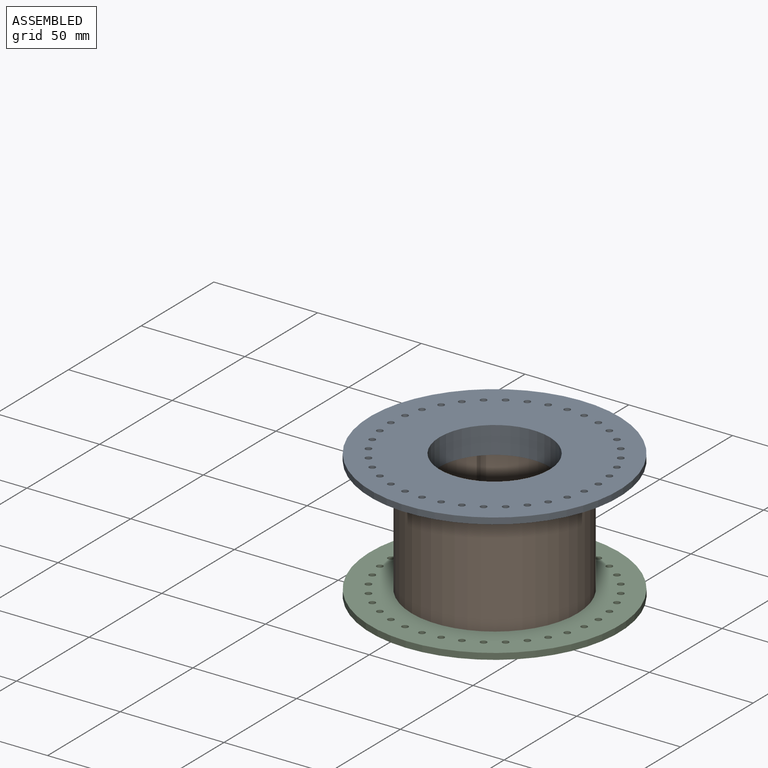
[diagram: assembled view]
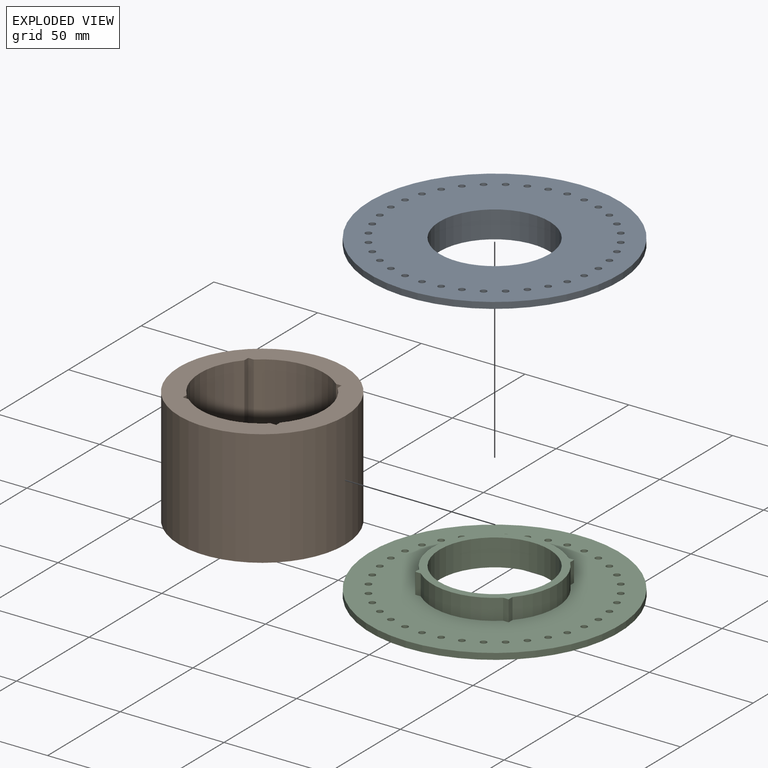
[diagram: exploded view]
GUIDED TOUR — MATED ASSEMBLY (Onshape document 8cd0e71a39302e8dd9101bc3, AutoMate assembly 8cd0e71a39302e8dd9101bc3_b6bc6614b7f099f93830e210_ee81863b3f11e340a0fe2805_default)

This assembly has 3 components, labeled P0..P2 below (a component is one placed occurrence of a part; the same part can appear more than once), held together by 3 mates. A mate is a constraint between two components; its type names the relative motion it leaves free:
  PARALLEL — keeps the two listed directions parallel.
Axis/direction vectors are unit vectors and 'through' points are millimeter coordinates, both in the assembly's world frame.

MATES
  1. PARALLEL "Parallel 1": P1 <-> P0, direction (0.000, 0.000, 1.000) through (-87.76, -81.19, 42.02) mm
  2. PARALLEL "Parallel 2": P1 <-> P2, direction (1.000, 0.000, 0.000) through (-110.26, -102.36, 14.02) mm
  3. PARALLEL "Parallel 3": P2 <-> P1, direction (0.000, 0.000, 1.000) through (-87.76, -81.19, -13.98) mm

ASSEMBLY ORDER
  1. P2 — the base component [order verified]
  2. P1 [order verified]
  3. P0 [order verified]
Order-tag legend:
  [order verified] — this step's position reverses a verified removal order: the component was checked to insert without passing through the ones already placed.

Of the 3 components, 2 carry the full construction recipe — the FeatureScript program that regenerates the part's solid from scratch; the rest are supplied as boundary geometry only.
Each toured component is shown spotlighted twice — in the assembled view, then in the exploded view, where a leader line traces a displaced component back to its assembled socket (saturated green if recipe-attached, orange if geometry-only; every other component desaturated gray) — followed by its recipe or geometry summary and the mates that hold it.
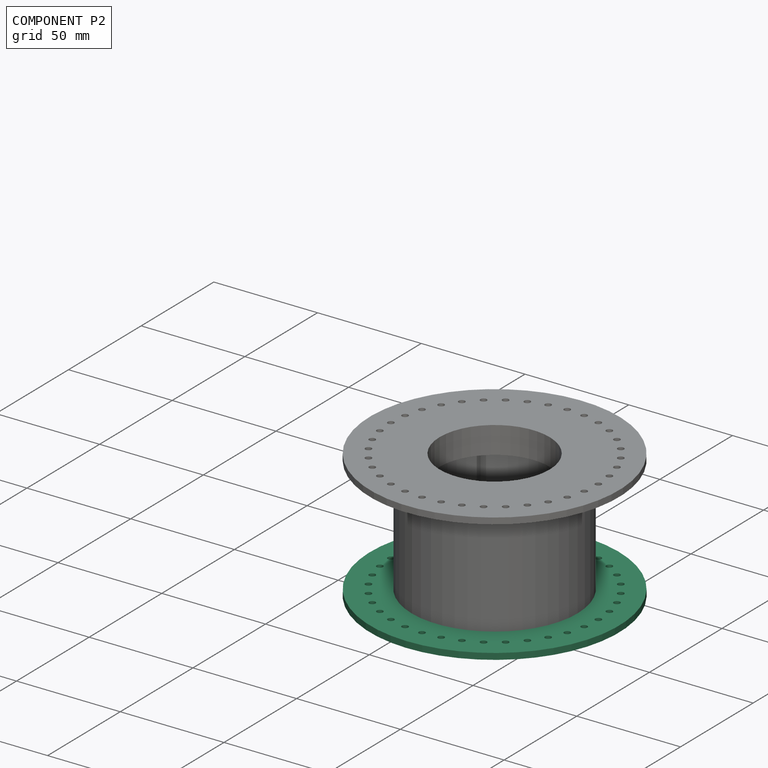
[diagram: component P2 — assembled]
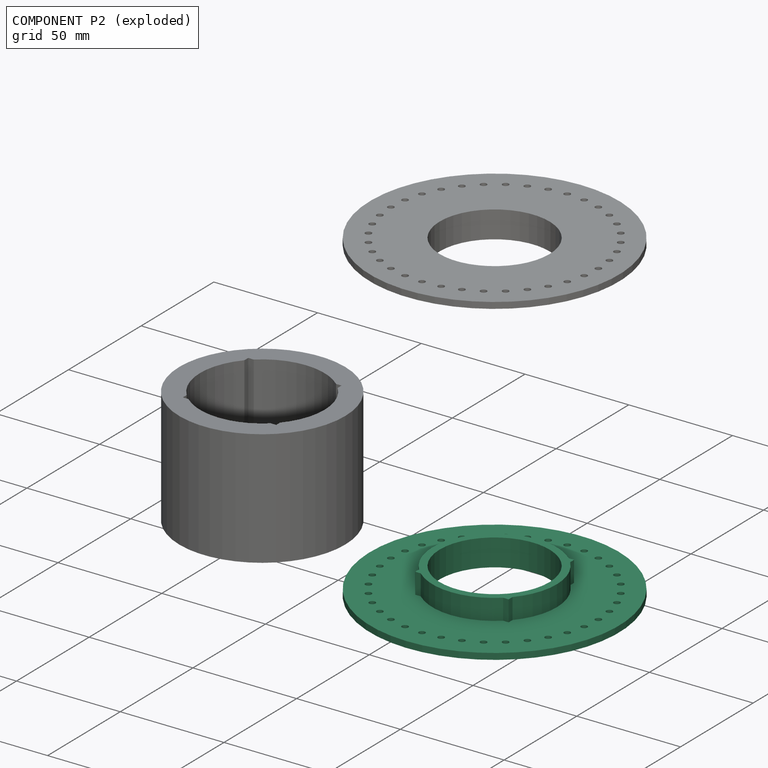
[diagram: component P2 — exploded]
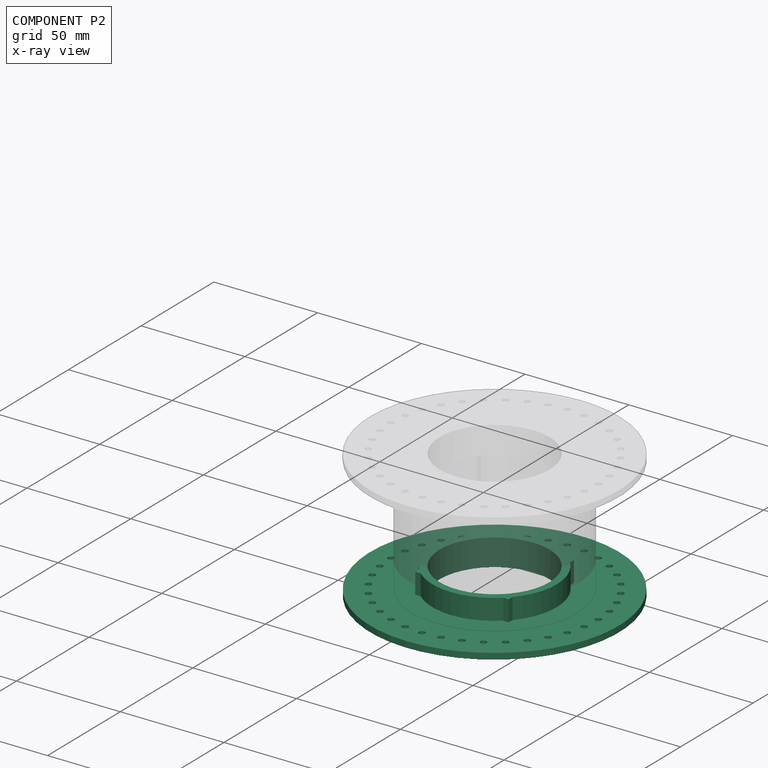
[diagram: component P2 — x-ray view]
COMPONENT P2 — same part as P0 (CADFS 00325223); its construction recipe is shown at P0.
Held by: PARALLEL mate "Parallel 2" to P1; PARALLEL mate "Parallel 3" to P1.
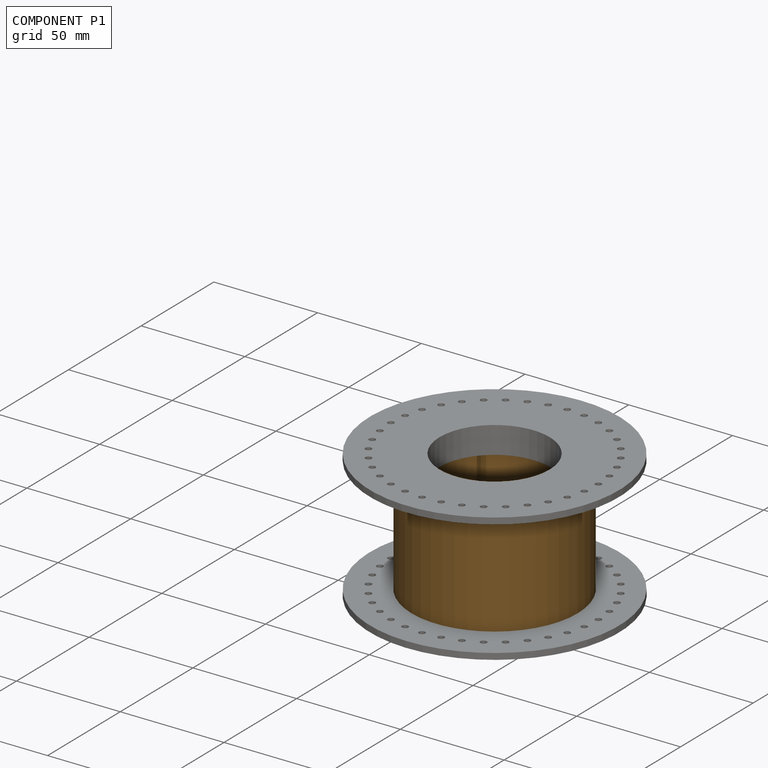
[diagram: component P1 — assembled]
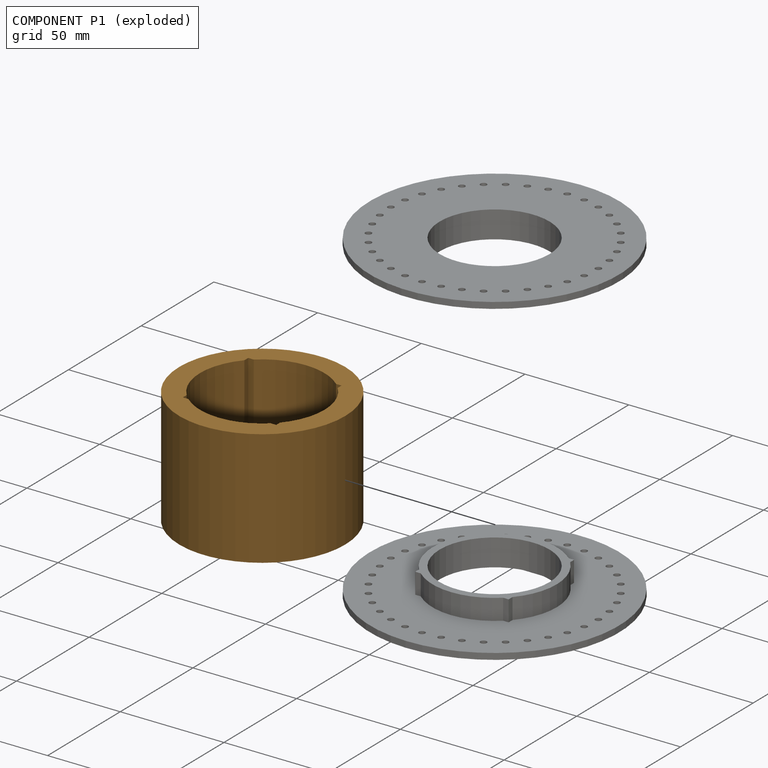
[diagram: component P1 — exploded]
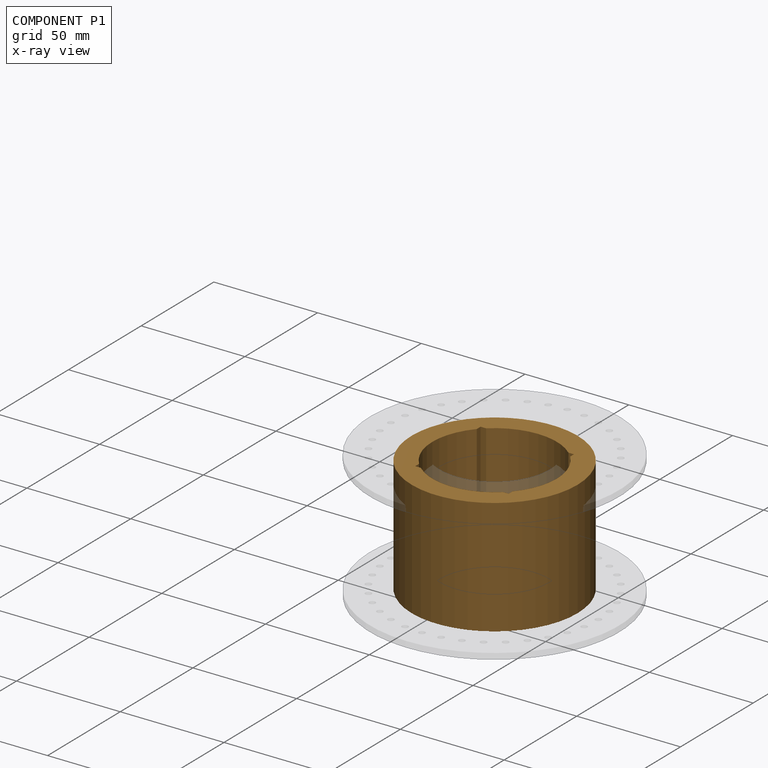
[diagram: component P1 — x-ray view]
COMPONENT P1 — geometry summary (no construction recipe available for this part):
  bounding box: 80.0 x 80.0 x 56.0 mm
  B-rep topology: 1 solid, 15 faces, 78 edges
  volume: 122393 mm^3 (34% of its bounding box)
  symmetry: 2-fold rotationally symmetric about the x axis; 2-fold rotationally symmetric about the y axis; 4-fold rotationally symmetric about the z axis; mirror-symmetric across its x mid-plane, y mid-plane, z mid-plane
Held by: PARALLEL mate "Parallel 1" to P0; PARALLEL mate "Parallel 2" to P2; PARALLEL mate "Parallel 3" to P2.
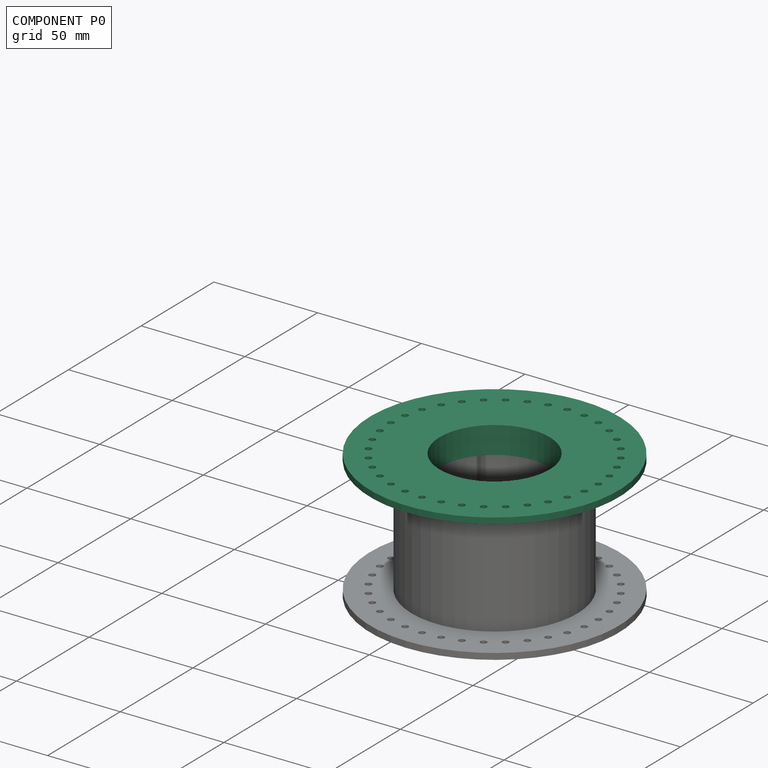
[diagram: component P0 — assembled]
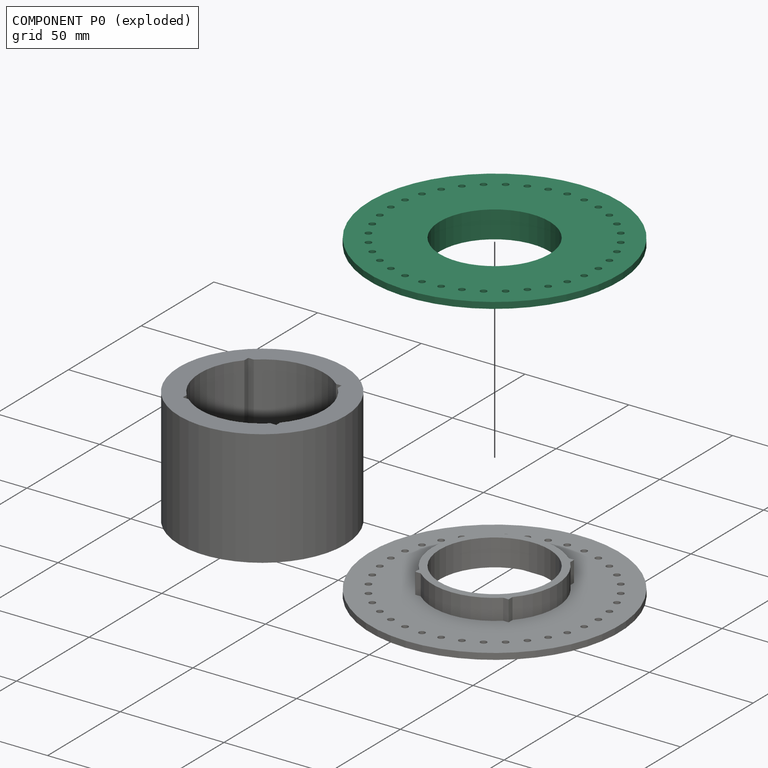
[diagram: component P0 — exploded]
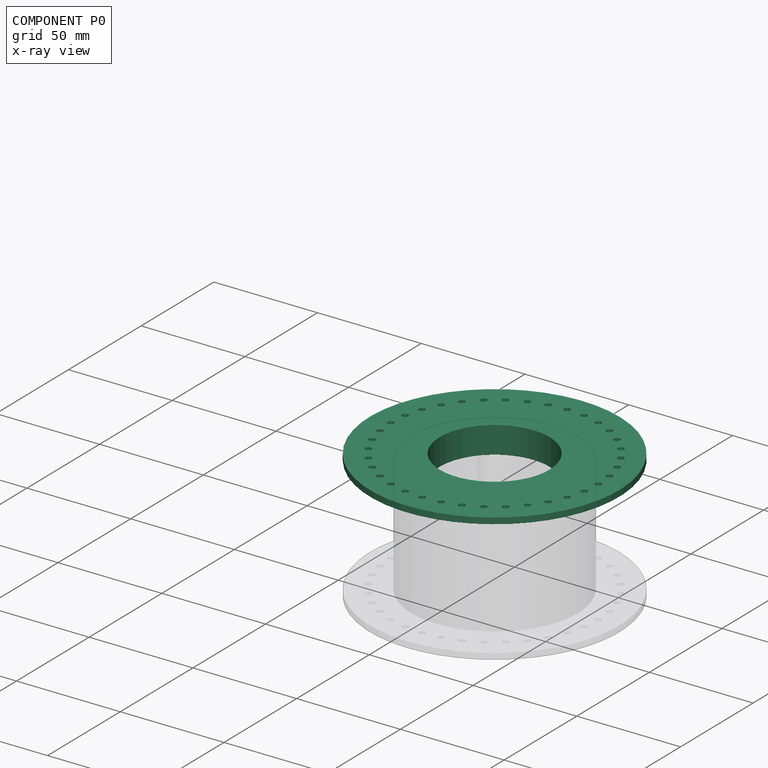
[diagram: component P0 — x-ray view]
COMPONENT P0 — recipe-attached (CADFS 00325223, mesh-verified: the recipe's output STEP matches this component's geometry to below the mesh-comparison resolution (tessellation chordal tolerance ~0.255 mm)).
Held by: PARALLEL mate "Parallel 1" to P1.
Construction recipe (FeatureScript — the CAD program that rebuilds this solid; sketch coordinates are in the units given by the * unit suffixes, e.g. mm):

FeatureScript 1511;
import(path : "onshape/std/geometry.fs", version : "1511.0");
import(path : "onshape/std/common.fs", version : "1511.0");
const mm = millimeter;
const VERTEX = EntityType.VERTEX;
const EDGE = EntityType.EDGE;
const FACE = EntityType.FACE;
const BODY = EntityType.BODY;
function v(x, y){return vector(x, y);}
function OD(order){return orderDisambiguation(order);}
function OSD(set){return originalSetDisambiguation(set);}
function TD(topology){return topologyDisambiguation(topology);}
function TDD(query){return trueDependencyDisambiguation(query);}
function sQuery(a, b, c) {return sketchEntityQuery(a, b, c);}

annotation { "Feature Type Name" : "Feature", "Feature Type Description" : "" }
export const myFeature = defineFeature(function(context is Context, id is Id, definition is map)
    precondition{}
    {
        {
            var Q0;
            Q0=qCreatedBy(makeId("Top.planeOp"),FACE);
            var sketch = newSketch(context, id + "F0", { "sketchPlane" : qUnion([Q0])});
            skCircle(sketch, "E0", {"center": v(0, 0) * mm, "radius": 60 * mm});
            skCircle(sketch, "E1", {"center": v(0, -50) * mm, "radius": 1.5 * mm});
            skCircle(sketch, "E2.1.0", {"center": v(8.68, -49.24) * mm, "radius": 1.5 * mm});
            skCircle(sketch, "E2.2.0", {"center": v(17.1, -46.98) * mm, "radius": 1.5 * mm});
            skCircle(sketch, "E2.3.0", {"center": v(25, -43.3) * mm, "radius": 1.5 * mm});
            skCircle(sketch, "E2.4.0", {"center": v(32.14, -38.3) * mm, "radius": 1.5 * mm});
            skCircle(sketch, "E2.5.0", {"center": v(38.3, -32.14) * mm, "radius": 1.5 * mm});
            skCircle(sketch, "E2.6.0", {"center": v(43.3, -25) * mm, "radius": 1.5 * mm});
            skCircle(sketch, "E2.7.0", {"center": v(46.98, -17.1) * mm, "radius": 1.5 * mm});
            skCircle(sketch, "E2.8.0", {"center": v(49.24, -8.68) * mm, "radius": 1.5 * mm});
            skCircle(sketch, "E2.9.0", {"center": v(50, 0) * mm, "radius": 1.5 * mm});
            skCircle(sketch, "E2.10.0", {"center": v(49.24, 8.68) * mm, "radius": 1.5 * mm});
            skCircle(sketch, "E2.11.0", {"center": v(46.98, 17.1) * mm, "radius": 1.5 * mm});
            skCircle(sketch, "E2.12.0", {"center": v(43.3, 25) * mm, "radius": 1.5 * mm});
            skCircle(sketch, "E2.13.0", {"center": v(38.3, 32.14) * mm, "radius": 1.5 * mm});
            skCircle(sketch, "E2.14.0", {"center": v(32.14, 38.3) * mm, "radius": 1.5 * mm});
            skCircle(sketch, "E2.15.0", {"center": v(25, 43.3) * mm, "radius": 1.5 * mm});
            skCircle(sketch, "E2.16.0", {"center": v(17.1, 46.98) * mm, "radius": 1.5 * mm});
            skCircle(sketch, "E2.17.0", {"center": v(8.68, 49.24) * mm, "radius": 1.5 * mm});
            skCircle(sketch, "E2.18.0", {"center": v(0, 50) * mm, "radius": 1.5 * mm});
            skCircle(sketch, "E2.19.0", {"center": v(-8.68, 49.24) * mm, "radius": 1.5 * mm});
            skCircle(sketch, "E2.20.0", {"center": v(-17.1, 46.98) * mm, "radius": 1.5 * mm});
            skCircle(sketch, "E2.21.0", {"center": v(-25, 43.3) * mm, "radius": 1.5 * mm});
            skCircle(sketch, "E2.22.0", {"center": v(-32.14, 38.3) * mm, "radius": 1.5 * mm});
            skCircle(sketch, "E2.23.0", {"center": v(-38.3, 32.14) * mm, "radius": 1.5 * mm});
            skCircle(sketch, "E2.24.0", {"center": v(-43.3, 25) * mm, "radius": 1.5 * mm});
            skCircle(sketch, "E2.25.0", {"center": v(-46.98, 17.1) * mm, "radius": 1.5 * mm});
            skCircle(sketch, "E2.26.0", {"center": v(-49.24, 8.68) * mm, "radius": 1.5 * mm});
            skCircle(sketch, "E2.27.0", {"center": v(-50, 0) * mm, "radius": 1.5 * mm});
            skCircle(sketch, "E2.28.0", {"center": v(-49.24, -8.68) * mm, "radius": 1.5 * mm});
            skCircle(sketch, "E2.29.0", {"center": v(-46.98, -17.1) * mm, "radius": 1.5 * mm});
            skCircle(sketch, "E2.30.0", {"center": v(-43.3, -25) * mm, "radius": 1.5 * mm});
            skCircle(sketch, "E2.31.0", {"center": v(-38.3, -32.14) * mm, "radius": 1.5 * mm});
            skCircle(sketch, "E2.32.0", {"center": v(-32.14, -38.3) * mm, "radius": 1.5 * mm});
            skCircle(sketch, "E2.33.0", {"center": v(-25, -43.3) * mm, "radius": 1.5 * mm});
            skCircle(sketch, "E2.34.0", {"center": v(-17.1, -46.98) * mm, "radius": 1.5 * mm});
            skCircle(sketch, "E2.35.0", {"center": v(-8.68, -49.24) * mm, "radius": 1.5 * mm});
            skLineSegment(sketch, "E2.anchor1", {"start": v(0, 0) * mm, "end": v(0, -50) * mm, "construction": true});
            skLineSegment(sketch, "E2.anchor2", {"start": v(0, 0) * mm, "end": v(-8.68, -49.24) * mm, "construction": true});
            skSolve(sketch);
        }
        {
            var Q0;
            Q0=makeQuery(id+"F0.imprint","IMPRINT",FACE,{"disambiguationData":[TD([[makeQuery(id+"F0.imprint","IMPRINT",EDGE,{"derivedFrom":sQuery(id+"F0.wireOp",EDGE,"E1")}),-1.0]])]});
            extrude(context, id + "F1", {"entities" : qUnion([Q0]), "depth" : 3 * mm});
        }
        {
            var Q0;
            Q0=makeQuery(id+"F1.opExtrude","CAP_FACE",FACE,{"disambiguationData":[OSD([sQuery(id+"F0.wireOp",EDGE,"E1"),sQuery(id+"F0.wireOp",EDGE,"E2.1.0"),sQuery(id+"F0.wireOp",EDGE,"E2.2.0"),sQuery(id+"F0.wireOp",EDGE,"E2.3.0"),sQuery(id+"F0.wireOp",EDGE,"E2.4.0"),sQuery(id+"F0.wireOp",EDGE,"E2.5.0"),sQuery(id+"F0.wireOp",EDGE,"E2.6.0"),sQuery(id+"F0.wireOp",EDGE,"E2.7.0"),sQuery(id+"F0.wireOp",EDGE,"E2.8.0"),sQuery(id+"F0.wireOp",EDGE,"E2.9.0"),sQuery(id+"F0.wireOp",EDGE,"E2.10.0"),sQuery(id+"F0.wireOp",EDGE,"E2.11.0"),sQuery(id+"F0.wireOp",EDGE,"E2.12.0"),sQuery(id+"F0.wireOp",EDGE,"E2.13.0"),sQuery(id+"F0.wireOp",EDGE,"E2.14.0"),sQuery(id+"F0.wireOp",EDGE,"E2.15.0"),sQuery(id+"F0.wireOp",EDGE,"E2.16.0"),sQuery(id+"F0.wireOp",EDGE,"E2.17.0"),sQuery(id+"F0.wireOp",EDGE,"E2.18.0"),sQuery(id+"F0.wireOp",EDGE,"E2.19.0"),sQuery(id+"F0.wireOp",EDGE,"E2.20.0"),sQuery(id+"F0.wireOp",EDGE,"E2.21.0"),sQuery(id+"F0.wireOp",EDGE,"E2.22.0"),sQuery(id+"F0.wireOp",EDGE,"E2.23.0"),sQuery(id+"F0.wireOp",EDGE,"E2.24.0"),sQuery(id+"F0.wireOp",EDGE,"E2.25.0"),sQuery(id+"F0.wireOp",EDGE,"E2.26.0"),sQuery(id+"F0.wireOp",EDGE,"E2.27.0"),sQuery(id+"F0.wireOp",EDGE,"E2.28.0"),sQuery(id+"F0.wireOp",EDGE,"E2.29.0"),sQuery(id+"F0.wireOp",EDGE,"E2.30.0"),sQuery(id+"F0.wireOp",EDGE,"E2.31.0"),sQuery(id+"F0.wireOp",EDGE,"E2.32.0"),sQuery(id+"F0.wireOp",EDGE,"E2.33.0"),sQuery(id+"F0.wireOp",EDGE,"E2.34.0"),sQuery(id+"F0.wireOp",EDGE,"E2.35.0"),sQuery(id+"F0.wireOp",EDGE,"E0")])],"isStart":false});
            var sketch = newSketch(context, id + "F2", { "sketchPlane" : qUnion([Q0])});
            skCircle(sketch, "E3", {"center": v(0, 0) * mm, "radius": 26.5 * mm});
            skSolve(sketch);
        }
        {
            var Q0;
            Q0=makeQuery(id+"F2.imprint","IMPRINT",FACE,{"disambiguationData":[TD([[makeQuery(id+"F2.imprint","IMPRINT",EDGE,{"derivedFrom":sQuery(id+"F2.wireOp",EDGE,"E3")}),1.0]])]});
            extrude(context, id + "F3", {"entities" : qUnion([Q0]), "operationType" : NewBodyOperationType.REMOVE, "oppositeDirection" : true, "depth" : 25 * mm});
        }
        {
            var Q0;
            Q0=makeQuery(id+"F1.opExtrude","CAP_FACE",FACE,{"disambiguationData":[OSD([sQuery(id+"F0.wireOp",EDGE,"E1"),sQuery(id+"F0.wireOp",EDGE,"E2.1.0"),sQuery(id+"F0.wireOp",EDGE,"E2.2.0"),sQuery(id+"F0.wireOp",EDGE,"E2.3.0"),sQuery(id+"F0.wireOp",EDGE,"E2.4.0"),sQuery(id+"F0.wireOp",EDGE,"E2.5.0"),sQuery(id+"F0.wireOp",EDGE,"E2.6.0"),sQuery(id+"F0.wireOp",EDGE,"E2.7.0"),sQuery(id+"F0.wireOp",EDGE,"E2.8.0"),sQuery(id+"F0.wireOp",EDGE,"E2.9.0"),sQuery(id+"F0.wireOp",EDGE,"E2.10.0"),sQuery(id+"F0.wireOp",EDGE,"E2.11.0"),sQuery(id+"F0.wireOp",EDGE,"E2.12.0"),sQuery(id+"F0.wireOp",EDGE,"E2.13.0"),sQuery(id+"F0.wireOp",EDGE,"E2.14.0"),sQuery(id+"F0.wireOp",EDGE,"E2.15.0"),sQuery(id+"F0.wireOp",EDGE,"E2.16.0"),sQuery(id+"F0.wireOp",EDGE,"E2.17.0"),sQuery(id+"F0.wireOp",EDGE,"E2.18.0"),sQuery(id+"F0.wireOp",EDGE,"E2.19.0"),sQuery(id+"F0.wireOp",EDGE,"E2.20.0"),sQuery(id+"F0.wireOp",EDGE,"E2.21.0"),sQuery(id+"F0.wireOp",EDGE,"E2.22.0"),sQuery(id+"F0.wireOp",EDGE,"E2.23.0"),sQuery(id+"F0.wireOp",EDGE,"E2.24.0"),sQuery(id+"F0.wireOp",EDGE,"E2.25.0"),sQuery(id+"F0.wireOp",EDGE,"E2.26.0"),sQuery(id+"F0.wireOp",EDGE,"E2.27.0"),sQuery(id+"F0.wireOp",EDGE,"E2.28.0"),sQuery(id+"F0.wireOp",EDGE,"E2.29.0"),sQuery(id+"F0.wireOp",EDGE,"E2.30.0"),sQuery(id+"F0.wireOp",EDGE,"E2.31.0"),sQuery(id+"F0.wireOp",EDGE,"E2.32.0"),sQuery(id+"F0.wireOp",EDGE,"E2.33.0"),sQuery(id+"F0.wireOp",EDGE,"E2.34.0"),sQuery(id+"F0.wireOp",EDGE,"E2.35.0"),sQuery(id+"F0.wireOp",EDGE,"E0")])],"isStart":false});
            var sketch = newSketch(context, id + "F4", { "sketchPlane" : qUnion([Q0])});
            skCircle(sketch, "E4", {"center": v(0, 0) * mm, "radius": 30 * mm});
            skSolve(sketch);
        }
        {
            var Q0;
            Q0=makeQuery(id+"F4.imprint","IMPRINT",FACE,{"disambiguationData":[TD([[makeQuery(id+"F4.imprint","IMPRINT",EDGE,{"derivedFrom":sQuery(id+"F4.wireOp",EDGE,"E4")}),1.0]])]});
            extrude(context, id + "F5", {"entities" : qUnion([Q0]), "operationType" : NewBodyOperationType.ADD, "depth" : 10 * mm});
        }
        {
            var Q0;
            Q0=makeQuery(id+"F1.opExtrude","CAP_FACE",FACE,{"disambiguationData":[OSD([sQuery(id+"F0.wireOp",EDGE,"E1"),sQuery(id+"F0.wireOp",EDGE,"E2.1.0"),sQuery(id+"F0.wireOp",EDGE,"E2.2.0"),sQuery(id+"F0.wireOp",EDGE,"E2.3.0"),sQuery(id+"F0.wireOp",EDGE,"E2.4.0"),sQuery(id+"F0.wireOp",EDGE,"E2.5.0"),sQuery(id+"F0.wireOp",EDGE,"E2.6.0"),sQuery(id+"F0.wireOp",EDGE,"E2.7.0"),sQuery(id+"F0.wireOp",EDGE,"E2.8.0"),sQuery(id+"F0.wireOp",EDGE,"E2.9.0"),sQuery(id+"F0.wireOp",EDGE,"E2.10.0"),sQuery(id+"F0.wireOp",EDGE,"E2.11.0"),sQuery(id+"F0.wireOp",EDGE,"E2.12.0"),sQuery(id+"F0.wireOp",EDGE,"E2.13.0"),sQuery(id+"F0.wireOp",EDGE,"E2.14.0"),sQuery(id+"F0.wireOp",EDGE,"E2.15.0"),sQuery(id+"F0.wireOp",EDGE,"E2.16.0"),sQuery(id+"F0.wireOp",EDGE,"E2.17.0"),sQuery(id+"F0.wireOp",EDGE,"E2.18.0"),sQuery(id+"F0.wireOp",EDGE,"E2.19.0"),sQuery(id+"F0.wireOp",EDGE,"E2.20.0"),sQuery(id+"F0.wireOp",EDGE,"E2.21.0"),sQuery(id+"F0.wireOp",EDGE,"E2.22.0"),sQuery(id+"F0.wireOp",EDGE,"E2.23.0"),sQuery(id+"F0.wireOp",EDGE,"E2.24.0"),sQuery(id+"F0.wireOp",EDGE,"E2.25.0"),sQuery(id+"F0.wireOp",EDGE,"E2.26.0"),sQuery(id+"F0.wireOp",EDGE,"E2.27.0"),sQuery(id+"F0.wireOp",EDGE,"E2.28.0"),sQuery(id+"F0.wireOp",EDGE,"E2.29.0"),sQuery(id+"F0.wireOp",EDGE,"E2.30.0"),sQuery(id+"F0.wireOp",EDGE,"E2.31.0"),sQuery(id+"F0.wireOp",EDGE,"E2.32.0"),sQuery(id+"F0.wireOp",EDGE,"E2.33.0"),sQuery(id+"F0.wireOp",EDGE,"E2.34.0"),sQuery(id+"F0.wireOp",EDGE,"E2.35.0"),sQuery(id+"F0.wireOp",EDGE,"E0")])],"isStart":false});
            var sketch = newSketch(context, id + "F6", { "sketchPlane" : qUnion([Q0])});
            skLineSegment(sketch, "E5.bottom", {"start": v(22.5, 22.5) * mm, "end": v(-22.5, 22.5) * mm});
            skLineSegment(sketch, "E5.top", {"start": v(22.5, -22.5) * mm, "end": v(-22.5, -22.5) * mm});
            skLineSegment(sketch, "E5.left", {"start": v(22.5, 22.5) * mm, "end": v(22.5, -22.5) * mm});
            skLineSegment(sketch, "E5.right", {"start": v(-22.5, 22.5) * mm, "end": v(-22.5, -22.5) * mm});
            skPoint(sketch, "E5.middle", {"position": v(0, 0) * mm});
            skSolve(sketch);
        }
        {
            var Q0;
            {var subQ0=sQuery(id+"F6.wireOp",EDGE,"E5.right");var subQ1=sQuery(id+"F6.wireOp",EDGE,"E5.top");var subQ2=makeQuery(id+"F6.imprint","INTERSECT",VERTEX,{"derivedFrom":[subQ1,subQ0]});Q0=makeQuery(id+"F6.imprint","IMPRINT",FACE,{"disambiguationData":[TD([[makeQuery(id+"F6.imprint","IMPRINT",EDGE,{"disambiguationData":[TD([[subQ2,1.0]])],"derivedFrom":subQ1}),-1.0]])]});}
            var Q1;
            {var subQ0=sQuery(id+"F6.wireOp",EDGE,"E5.left");var subQ1=sQuery(id+"F6.wireOp",EDGE,"E5.top");var subQ2=makeQuery(id+"F6.imprint","INTERSECT",VERTEX,{"derivedFrom":[subQ1,subQ0]});Q1=makeQuery(id+"F6.imprint","IMPRINT",FACE,{"disambiguationData":[TD([[makeQuery(id+"F6.imprint","IMPRINT",EDGE,{"disambiguationData":[TD([[subQ2,-1.0]])],"derivedFrom":subQ1}),-1.0]])]});}
            var Q2;
            {var subQ0=sQuery(id+"F6.wireOp",EDGE,"E5.left");var subQ1=sQuery(id+"F6.wireOp",EDGE,"E5.bottom");var subQ2=makeQuery(id+"F6.imprint","INTERSECT",VERTEX,{"derivedFrom":[subQ1,subQ0]});Q2=makeQuery(id+"F6.imprint","IMPRINT",FACE,{"disambiguationData":[TD([[makeQuery(id+"F6.imprint","IMPRINT",EDGE,{"disambiguationData":[TD([[subQ2,-1.0]])],"derivedFrom":subQ1}),1.0]])]});}
            var Q3;
            {var subQ0=sQuery(id+"F6.wireOp",EDGE,"E5.right");var subQ1=sQuery(id+"F6.wireOp",EDGE,"E5.bottom");var subQ2=makeQuery(id+"F6.imprint","INTERSECT",VERTEX,{"derivedFrom":[subQ1,subQ0]});Q3=makeQuery(id+"F6.imprint","IMPRINT",FACE,{"disambiguationData":[TD([[makeQuery(id+"F6.imprint","IMPRINT",EDGE,{"disambiguationData":[TD([[subQ2,1.0]])],"derivedFrom":subQ1}),1.0]])]});}
            extrude(context, id + "F7", {"entities" : qUnion([Q0, Q1, Q2, Q3]), "operationType" : NewBodyOperationType.ADD, "depth" : 10 * mm});
        }
    });
PROVENANCE & LICENSES
Assembly (occurrences, transforms, mates, per-part STEP geometry): AutoMate dataset, Zenodo record 7776208, CC0.
Construction recipes: CADFS (HuggingFace VladPyatov/CADFS, CC-BY-4.0, layered over the ABC dataset), FeatureScript reconstruction programs keyed by ABC model id.
Join: ABC meta listings map ABC model id -> Onshape documentId; within a shared document, parts are matched by geometric signature (bounding-box dims + volume at 0.1% relative tolerance, exact B-rep face/solid counts).
Verification: 2 of this assembly's 3 components carry a recipe attachment, and every attachment is mesh-verified: the CADFS STEP and the AutoMate member STEP were compared as meshes in their shared local frame (symmetric sampled-point-to-mesh distance); worst across the 2 attachments: below the mesh-comparison resolution (tessellation chordal tolerance ~0.255 mm) on a 170 mm part.
Renders: orthographic iso camera (az 35 / el 25); the floor grid conveys scale (grid pitch printed in each image; no ruler). In the exploded view each component is displaced by its stored offset vector: the offsets alone carry the explosion direction (mate normal/axis signs are not orientation cues and do not encode it), and separation distances are assigned per mate-chain, not proportionally to assembly-order depth.
